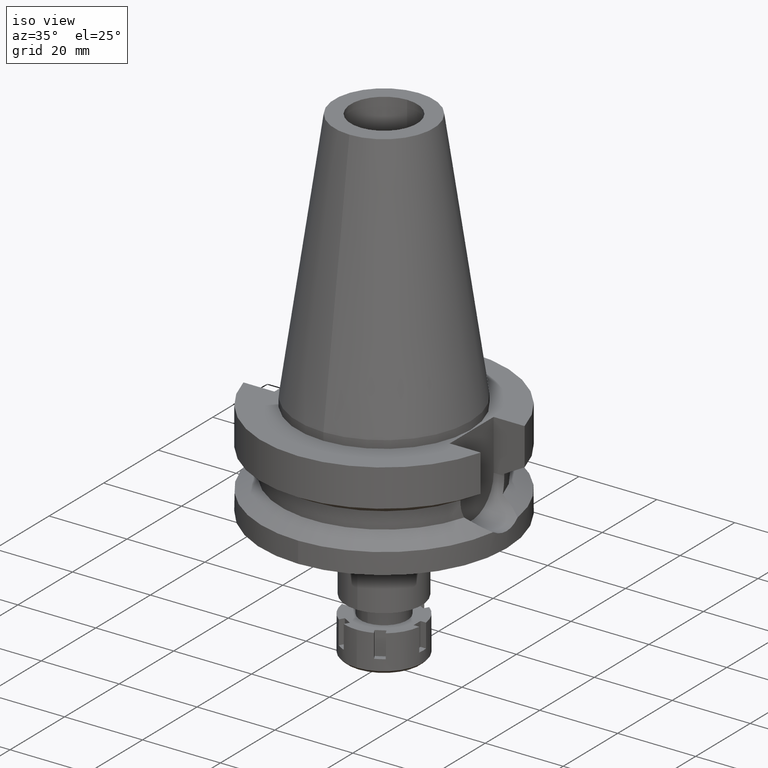
[diagram: clean part render]
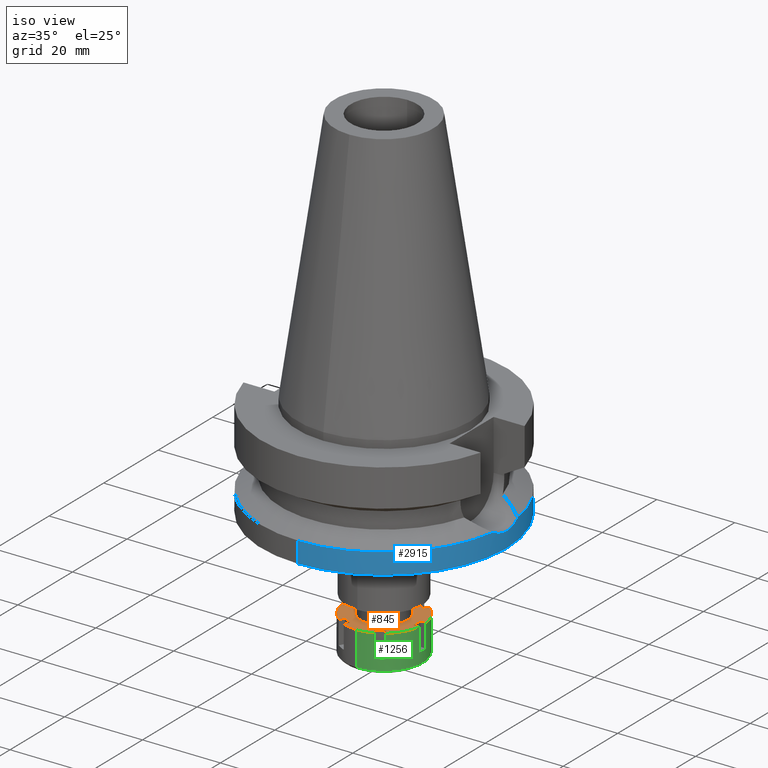
[diagram: same view with three faces highlighted in distinct colors, each labeled with its STEP entity id]
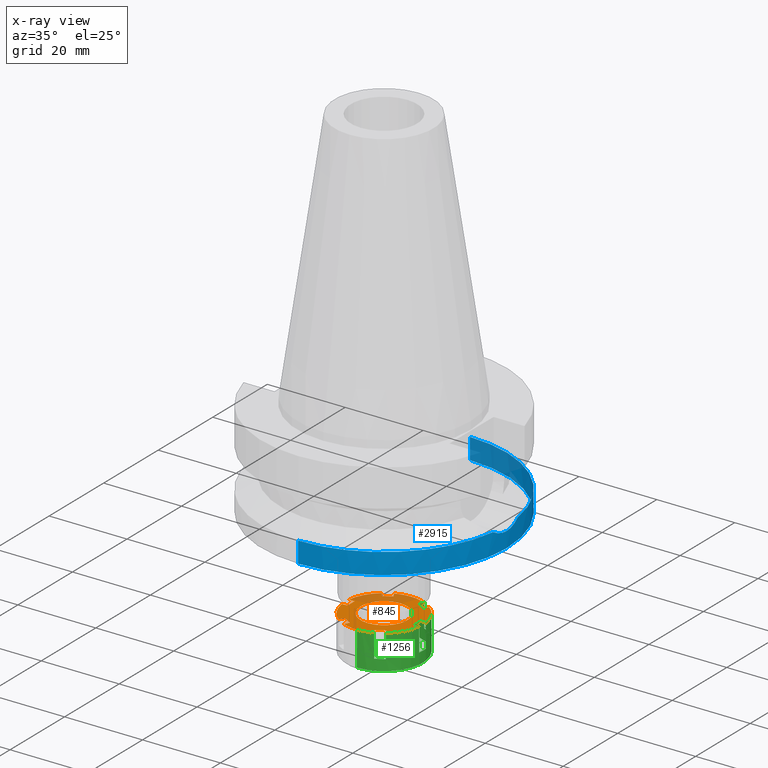
[diagram: x-ray of the same camera — body ghosted, the three highlighted faces saturated]
A machine part, iso view with three faces highlighted in distinct colors.
The next image is the same camera in x-ray (body ghosted, the three faces saturated) — at least one of them is partly hidden behind the body in this view.
Their STEP definitions:

[orange] entity #845 — the highlighted planar face has unit normal (0, 0, -1).
#6 = VECTOR ( 'NONE', #564, 1000.000000000000227 ) ;
#13 = ORIENTED_EDGE ( 'NONE', *, *, #2983, .F. ) ;
#38 = EDGE_CURVE ( 'NONE', #1126, #334, #3113, .T. ) ;
#73 = VERTEX_POINT ( 'NONE', #2316 ) ;
#86 = EDGE_CURVE ( 'NONE', #788, #3486, #3517, .T. ) ;
#95 = AXIS2_PLACEMENT_3D ( 'NONE', #978, #1810, #3449 ) ;
#104 = CARTESIAN_POINT ( 'NONE',  ( 0.0000000000000000000, 0.0000000000000000000, 0.0000000000000000000 ) ) ;
#109 = CIRCLE ( 'NONE', #2128, 6.000000000000000000 ) ;
#114 = DIRECTION ( 'NONE',  ( 0.0000000000000000000, 0.0000000000000000000, -1.000000000000000000 ) ) ;
#135 = LINE ( 'NONE', #2339, #2359 ) ;
#136 = ORIENTED_EDGE ( 'NONE', *, *, #3340, .F. ) ;
#156 = VERTEX_POINT ( 'NONE', #1031 ) ;
#158 = DIRECTION ( 'NONE',  ( 0.0000000000000000000, 0.0000000000000000000, -1.000000000000000000 ) ) ;
#175 = CIRCLE ( 'NONE', #2205, 10.00000000000000000 ) ;
#178 = EDGE_CURVE ( 'NONE', #1702, #471, #109, .T. ) ;
#180 = ORIENTED_EDGE ( 'NONE', *, *, #312, .T. ) ;
#225 = CARTESIAN_POINT ( 'NONE',  ( 3.167468245270000260, 7.986215932168000187, 0.0000000000000000000 ) ) ;
#246 = FACE_BOUND ( 'NONE', #2780, .T. ) ;
#249 = EDGE_CURVE ( 'NONE', #2332, #1006, #1128, .T. ) ;
#255 = ORIENTED_EDGE ( 'NONE', *, *, #1090, .F. ) ;
#269 = DIRECTION ( 'NONE',  ( 0.0000000000000000000, 0.0000000000000000000, -1.000000000000000000 ) ) ;
#279 = DIRECTION ( 'NONE',  ( -1.000000000000000000, 0.0000000000000000000, 0.0000000000000000000 ) ) ;
#312 = EDGE_CURVE ( 'NONE', #73, #788, #2810, .T. ) ;
#334 = VERTEX_POINT ( 'NONE', #2545 ) ;
#337 = VECTOR ( 'NONE', #1234, 1000.000000000000000 ) ;
#341 = DIRECTION ( 'NONE',  ( 0.5000000000000169864, 0.8660254037844288266, 0.0000000000000000000 ) ) ;
#356 = CARTESIAN_POINT ( 'NONE',  ( 0.0000000000000000000, 10.00000000000000000, 0.0000000000000000000 ) ) ;
#406 = DIRECTION ( 'NONE',  ( 0.0000000000000000000, 1.000000000000000000, 0.0000000000000000000 ) ) ;
#411 = DIRECTION ( 'NONE',  ( 0.3878251953515154948, -0.9217329428042371209, 0.0000000000000000000 ) ) ;
#420 = EDGE_CURVE ( 'NONE', #1573, #1604, #2621, .T. ) ;
#427 = EDGE_CURVE ( 'NONE', #3159, #2478, #1781, .T. ) ;
#436 = ORIENTED_EDGE ( 'NONE', *, *, #38, .F. ) ;
#471 = VERTEX_POINT ( 'NONE', #1203 ) ;
#480 = DIRECTION ( 'NONE',  ( 0.0000000000000000000, 1.000000000000000000, 0.0000000000000000000 ) ) ;
#486 = AXIS2_PLACEMENT_3D ( 'NONE', #2592, #114, #406 ) ;
#499 = CARTESIAN_POINT ( 'NONE',  ( -5.332531754731000717, -6.736215932168000187, 0.0000000000000000000 ) ) ;
#502 = EDGE_LOOP ( 'NONE', ( #577, #2282, #3426, #3454, #1510, #3533, #3087, #1050, #3248, #3521, #3433, #255, #3179, #1930, #1676, #436, #2854, #136, #1465, #2082, #180, #3519, #3120, #2594, #508, #3073 ) ) ;
#508 = ORIENTED_EDGE ( 'NONE', *, *, #249, .F. ) ;
#564 = DIRECTION ( 'NONE',  ( 0.5000000000002097211, 0.8660254037843175823, 0.0000000000000000000 ) ) ;
#577 = ORIENTED_EDGE ( 'NONE', *, *, #2261, .F. ) ;
#618 = CARTESIAN_POINT ( 'NONE',  ( 3.167468245269000171, -7.986215932168000187, 0.0000000000000000000 ) ) ;
#622 = EDGE_CURVE ( 'NONE', #2016, #1962, #2738, .T. ) ;
#642 = EDGE_CURVE ( 'NONE', #1609, #2332, #3528, .T. ) ;
#652 = CARTESIAN_POINT ( 'NONE',  ( 9.921567416491999580, -1.250000000000000000, 0.0000000000000000000 ) ) ;
#657 = CARTESIAN_POINT ( 'NONE',  ( -6.043315462977000507, 7.967329428041999506, 0.0000000000000000000 ) ) ;
#666 = CARTESIAN_POINT ( 'NONE',  ( -5.332531754731000717, -6.736215932168000187, 0.0000000000000000000 ) ) ;
#690 = EDGE_CURVE ( 'NONE', #2058, #2176, #2865, .T. ) ;
#709 = LINE ( 'NONE', #2106, #1831 ) ;
#761 = EDGE_CURVE ( 'NONE', #2556, #2240, #3205, .T. ) ;
#781 = CARTESIAN_POINT ( 'NONE',  ( 6.043315462977000507, -7.967329428041999506, 0.0000000000000000000 ) ) ;
#788 = VERTEX_POINT ( 'NONE', #2099 ) ;
#816 = LINE ( 'NONE', #781, #2178 ) ;
#830 = DIRECTION ( 'NONE',  ( -1.000000000000000000, 0.0000000000000000000, 0.0000000000000000000 ) ) ;
#845 = ADVANCED_FACE ( 'NONE', ( #1614, #246 ), #2720, .F. ) ;
#855 = CARTESIAN_POINT ( 'NONE',  ( 5.332531754731000717, 6.736215932168000187, 0.0000000000000000000 ) ) ;
#870 = DIRECTION ( 'NONE',  ( 0.8660254037844536956, -0.4999999999999738542, 0.0000000000000000000 ) ) ;
#879 = VECTOR ( 'NONE', #3403, 1000.000000000000114 ) ;
#910 = CARTESIAN_POINT ( 'NONE',  ( 6.043315462977000507, -7.967329428041999506, 0.0000000000000000000 ) ) ;
#920 = DIRECTION ( 'NONE',  ( 0.6043315462976971419, 0.7967329428041960426, 0.0000000000000000000 ) ) ;
#976 = CIRCLE ( 'NONE', #3329, 10.00000000000000000 ) ;
#978 = CARTESIAN_POINT ( 'NONE',  ( 0.0000000000000000000, 0.0000000000000000000, 0.0000000000000000000 ) ) ;
#1006 = VERTEX_POINT ( 'NONE', #855 ) ;
#1031 = CARTESIAN_POINT ( 'NONE',  ( -8.500000000000000000, 1.250000000000000000, 0.0000000000000000000 ) ) ;
#1040 = CARTESIAN_POINT ( 'NONE',  ( -3.167468245269000171, 7.986215932168000187, 0.0000000000000000000 ) ) ;
#1050 = ORIENTED_EDGE ( 'NONE', *, *, #1450, .T. ) ;
#1052 = CARTESIAN_POINT ( 'NONE',  ( 8.500000000000000000, 1.250000000000000000, 0.0000000000000000000 ) ) ;
#1061 = CARTESIAN_POINT ( 'NONE',  ( 3.878251953516000050, 9.217329428041999506, 0.0000000000000000000 ) ) ;
#1078 = CARTESIAN_POINT ( 'NONE',  ( -8.500000000000000000, -1.250000000000000000, 0.0000000000000000000 ) ) ;
#1090 = EDGE_CURVE ( 'NONE', #1265, #3159, #1666, .T. ) ;
#1099 = DIRECTION ( 'NONE',  ( -0.3878251953515154948, 0.9217329428042371209, 0.0000000000000000000 ) ) ;
#1111 = CARTESIAN_POINT ( 'NONE',  ( -8.500000000000000000, -1.250000000000000000, 0.0000000000000000000 ) ) ;
#1112 = CARTESIAN_POINT ( 'NONE',  ( 3.878251953516000050, 9.217329428041999506, 0.0000000000000000000 ) ) ;
#1126 = VERTEX_POINT ( 'NONE', #618 ) ;
#1128 = LINE ( 'NONE', #2237, #3464 ) ;
#1139 = EDGE_CURVE ( 'NONE', #2556, #73, #3051, .T. ) ;
#1166 = LINE ( 'NONE', #3364, #1378 ) ;
#1190 = VECTOR ( 'NONE', #2161, 1000.000000000000227 ) ;
#1203 = CARTESIAN_POINT ( 'NONE',  ( 0.0000000000000000000, -6.000000000000000000, 0.0000000000000000000 ) ) ;
#1221 = VECTOR ( 'NONE', #3235, 1000.000000000000227 ) ;
#1234 = DIRECTION ( 'NONE',  ( 1.000000000000000000, 0.0000000000000000000, 0.0000000000000000000 ) ) ;
#1241 = DIRECTION ( 'NONE',  ( -0.6043315462976971419, -0.7967329428041960426, 0.0000000000000000000 ) ) ;
#1265 = VERTEX_POINT ( 'NONE', #1452 ) ;
#1287 = VERTEX_POINT ( 'NONE', #3112 ) ;
#1294 = VERTEX_POINT ( 'NONE', #3131 ) ;
#1309 = DIRECTION ( 'NONE',  ( -0.8660254037844536956, -0.4999999999999738542, 0.0000000000000000000 ) ) ;
#1318 = EDGE_CURVE ( 'NONE', #1006, #1287, #1166, .T. ) ;
#1332 = CARTESIAN_POINT ( 'NONE',  ( -5.332531754731000717, 6.736215932168000187, 0.0000000000000000000 ) ) ;
#1378 = VECTOR ( 'NONE', #341, 1000.000000000000114 ) ;
#1388 = VERTEX_POINT ( 'NONE', #2331 ) ;
#1409 = EDGE_CURVE ( 'NONE', #1287, #3486, #2815, .T. ) ;
#1432 = CARTESIAN_POINT ( 'NONE',  ( -5.332531754731000717, 6.736215932168000187, 0.0000000000000000000 ) ) ;
#1450 = EDGE_CURVE ( 'NONE', #156, #2016, #709, .T. ) ;
#1452 = CARTESIAN_POINT ( 'NONE',  ( -3.167468245270000260, -7.986215932168000187, 0.0000000000000000000 ) ) ;
#1458 = LINE ( 'NONE', #2569, #337 ) ;
#1465 = ORIENTED_EDGE ( 'NONE', *, *, #761, .F. ) ;
#1473 = EDGE_CURVE ( 'NONE', #1815, #1573, #3221, .T. ) ;
#1498 = VECTOR ( 'NONE', #2799, 1000.000000000000000 ) ;
#1510 = ORIENTED_EDGE ( 'NONE', *, *, #2173, .F. ) ;
#1529 = DIRECTION ( 'NONE',  ( 0.8660254037844536956, 0.4999999999999738542, 0.0000000000000000000 ) ) ;
#1556 = DIRECTION ( 'NONE',  ( 0.0000000000000000000, 0.0000000000000000000, -1.000000000000000000 ) ) ;
#1573 = VERTEX_POINT ( 'NONE', #3512 ) ;
#1600 = LINE ( 'NONE', #3023, #1825 ) ;
#1604 = VERTEX_POINT ( 'NONE', #2671 ) ;
#1609 = VERTEX_POINT ( 'NONE', #1112 ) ;
#1611 = VECTOR ( 'NONE', #1747, 1000.000000000000227 ) ;
#1614 = FACE_OUTER_BOUND ( 'NONE', #502, .T. ) ;
#1640 = DIRECTION ( 'NONE',  ( -0.5000000000000169864, 0.8660254037844288266, 0.0000000000000000000 ) ) ;
#1643 = ORIENTED_EDGE ( 'NONE', *, *, #178, .F. ) ;
#1666 = LINE ( 'NONE', #2550, #1498 ) ;
#1676 = ORIENTED_EDGE ( 'NONE', *, *, #2910, .F. ) ;
#1702 = VERTEX_POINT ( 'NONE', #3325 ) ;
#1728 = CARTESIAN_POINT ( 'NONE',  ( 3.167468245269000171, -7.986215932168000187, 0.0000000000000000000 ) ) ;
#1740 = DIRECTION ( 'NONE',  ( 0.0000000000000000000, 0.0000000000000000000, -1.000000000000000000 ) ) ;
#1747 = DIRECTION ( 'NONE',  ( 0.5000000000002097211, -0.8660254037843175823, 0.0000000000000000000 ) ) ;
#1774 = VECTOR ( 'NONE', #1899, 1000.000000000000000 ) ;
#1781 = LINE ( 'NONE', #499, #879 ) ;
#1810 = DIRECTION ( 'NONE',  ( 0.0000000000000000000, 0.0000000000000000000, -1.000000000000000000 ) ) ;
#1815 = VERTEX_POINT ( 'NONE', #1432 ) ;
#1825 = VECTOR ( 'NONE', #1309, 1000.000000000000000 ) ;
#1831 = VECTOR ( 'NONE', #3166, 1000.000000000000000 ) ;
#1853 = CARTESIAN_POINT ( 'NONE',  ( -9.921567416491999580, -1.250000000000000000, 0.0000000000000000000 ) ) ;
#1868 = CARTESIAN_POINT ( 'NONE',  ( -6.043315462977000507, -7.967329428041999506, 0.0000000000000000000 ) ) ;
#1899 = DIRECTION ( 'NONE',  ( 1.000000000000000000, 0.0000000000000000000, 0.0000000000000000000 ) ) ;
#1910 = CARTESIAN_POINT ( 'NONE',  ( 0.0000000000000000000, 0.0000000000000000000, 0.0000000000000000000 ) ) ;
#1924 = EDGE_CURVE ( 'NONE', #2268, #1294, #976, .T. ) ;
#1930 = ORIENTED_EDGE ( 'NONE', *, *, #1924, .F. ) ;
#1936 = LINE ( 'NONE', #3030, #6 ) ;
#1948 = DIRECTION ( 'NONE',  ( 0.0000000000000000000, 1.000000000000000000, 0.0000000000000000000 ) ) ;
#1950 = DIRECTION ( 'NONE',  ( 0.0000000000000000000, 0.0000000000000000000, 1.000000000000000000 ) ) ;
#1962 = VERTEX_POINT ( 'NONE', #1853 ) ;
#2016 = VERTEX_POINT ( 'NONE', #1111 ) ;
#2042 = CIRCLE ( 'NONE', #486, 10.00000000000000000 ) ;
#2058 = VERTEX_POINT ( 'NONE', #2537 ) ;
#2082 = ORIENTED_EDGE ( 'NONE', *, *, #1139, .T. ) ;
#2099 = CARTESIAN_POINT ( 'NONE',  ( 8.500000000000000000, 1.250000000000000000, 0.0000000000000000000 ) ) ;
#2106 = CARTESIAN_POINT ( 'NONE',  ( -8.500000000000000000, 1.250000000000000000, 0.0000000000000000000 ) ) ;
#2117 = CARTESIAN_POINT ( 'NONE',  ( 0.0000000000000000000, 0.0000000000000000000, 0.0000000000000000000 ) ) ;
#2128 = AXIS2_PLACEMENT_3D ( 'NONE', #3226, #3282, #480 ) ;
#2139 = DIRECTION ( 'NONE',  ( 0.0000000000000000000, -1.000000000000000000, 0.0000000000000000000 ) ) ;
#2156 = EDGE_CURVE ( 'NONE', #2058, #156, #1458, .T. ) ;
#2161 = DIRECTION ( 'NONE',  ( -0.5000000000002097211, -0.8660254037843175823, 0.0000000000000000000 ) ) ;
#2173 = EDGE_CURVE ( 'NONE', #2176, #1815, #135, .T. ) ;
#2176 = VERTEX_POINT ( 'NONE', #657 ) ;
#2177 = DIRECTION ( 'NONE',  ( 0.0000000000000000000, 0.0000000000000000000, -1.000000000000000000 ) ) ;
#2178 = VECTOR ( 'NONE', #1640, 1000.000000000000114 ) ;
#2205 = AXIS2_PLACEMENT_3D ( 'NONE', #2882, #1740, #411 ) ;
#2225 = DIRECTION ( 'NONE',  ( 0.0000000000000000000, -1.000000000000000000, 0.0000000000000000000 ) ) ;
#2237 = CARTESIAN_POINT ( 'NONE',  ( 3.167468245270000260, 7.986215932168000187, 0.0000000000000000000 ) ) ;
#2240 = VERTEX_POINT ( 'NONE', #910 ) ;
#2261 = EDGE_CURVE ( 'NONE', #3071, #1609, #2042, .T. ) ;
#2268 = VERTEX_POINT ( 'NONE', #2322 ) ;
#2282 = ORIENTED_EDGE ( 'NONE', *, *, #3419, .F. ) ;
#2291 = VECTOR ( 'NONE', #830, 1000.000000000000000 ) ;
#2316 = CARTESIAN_POINT ( 'NONE',  ( 8.500000000000000000, -1.250000000000000000, 0.0000000000000000000 ) ) ;
#2322 = CARTESIAN_POINT ( 'NONE',  ( 0.0000000000000000000, -10.00000000000000000, 0.0000000000000000000 ) ) ;
#2331 = CARTESIAN_POINT ( 'NONE',  ( 5.332531754731000717, -6.736215932168000187, 0.0000000000000000000 ) ) ;
#2332 = VERTEX_POINT ( 'NONE', #225 ) ;
#2337 = CARTESIAN_POINT ( 'NONE',  ( 0.0000000000000000000, 0.0000000000000000000, 0.0000000000000000000 ) ) ;
#2339 = CARTESIAN_POINT ( 'NONE',  ( -6.043315462977000507, 7.967329428041999506, 0.0000000000000000000 ) ) ;
#2349 = DIRECTION ( 'NONE',  ( 0.0000000000000000000, 0.0000000000000000000, -1.000000000000000000 ) ) ;
#2359 = VECTOR ( 'NONE', #3137, 1000.000000000000114 ) ;
#2394 = DIRECTION ( 'NONE',  ( 0.0000000000000000000, -1.000000000000000000, 0.0000000000000000000 ) ) ;
#2406 = AXIS2_PLACEMENT_3D ( 'NONE', #2440, #269, #1099 ) ;
#2430 = AXIS2_PLACEMENT_3D ( 'NONE', #104, #158, #1241 ) ;
#2440 = CARTESIAN_POINT ( 'NONE',  ( 0.0000000000000000000, 0.0000000000000000000, 0.0000000000000000000 ) ) ;
#2444 = VECTOR ( 'NONE', #1948, 1000.000000000000000 ) ;
#2469 = AXIS2_PLACEMENT_3D ( 'NONE', #2117, #2177, #2139 ) ;
#2478 = VERTEX_POINT ( 'NONE', #1868 ) ;
#2537 = CARTESIAN_POINT ( 'NONE',  ( -9.921567416491999580, 1.250000000000000000, 0.0000000000000000000 ) ) ;
#2545 = CARTESIAN_POINT ( 'NONE',  ( 3.878251953514999961, -9.217329428041999506, 0.0000000000000000000 ) ) ;
#2550 = CARTESIAN_POINT ( 'NONE',  ( -3.167468245270000260, -7.986215932168000187, 0.0000000000000000000 ) ) ;
#2556 = VERTEX_POINT ( 'NONE', #652 ) ;
#2562 = CARTESIAN_POINT ( 'NONE',  ( 0.0000000000000000000, 0.0000000000000000000, 0.0000000000000000000 ) ) ;
#2569 = CARTESIAN_POINT ( 'NONE',  ( -9.921567416491999580, 1.250000000000000000, 0.0000000000000000000 ) ) ;
#2580 = AXIS2_PLACEMENT_3D ( 'NONE', #2337, #1556, #3411 ) ;
#2592 = CARTESIAN_POINT ( 'NONE',  ( 0.0000000000000000000, 0.0000000000000000000, 0.0000000000000000000 ) ) ;
#2594 = ORIENTED_EDGE ( 'NONE', *, *, #1318, .F. ) ;
#2607 = EDGE_CURVE ( 'NONE', #1294, #1265, #1936, .T. ) ;
#2621 = LINE ( 'NONE', #1040, #1221 ) ;
#2671 = CARTESIAN_POINT ( 'NONE',  ( -3.878251953514999961, 9.217329428041999506, 0.0000000000000000000 ) ) ;
#2720 = PLANE ( 'NONE',  #2469 ) ;
#2738 = LINE ( 'NONE', #1078, #2291 ) ;
#2768 = CARTESIAN_POINT ( 'NONE',  ( 8.500000000000000000, -1.250000000000000000, 0.0000000000000000000 ) ) ;
#2771 = CIRCLE ( 'NONE', #2430, 9.999999999999998224 ) ;
#2780 = EDGE_LOOP ( 'NONE', ( #1643, #13 ) ) ;
#2787 = CARTESIAN_POINT ( 'NONE',  ( 9.921567416491999580, -1.250000000000000000, 0.0000000000000000000 ) ) ;
#2799 = DIRECTION ( 'NONE',  ( -0.8660254037844536956, 0.4999999999999738542, 0.0000000000000000000 ) ) ;
#2810 = LINE ( 'NONE', #2768, #2444 ) ;
#2815 = CIRCLE ( 'NONE', #3273, 9.999999999999998224 ) ;
#2854 = ORIENTED_EDGE ( 'NONE', *, *, #3414, .F. ) ;
#2865 = CIRCLE ( 'NONE', #95, 9.999999999999998224 ) ;
#2877 = CARTESIAN_POINT ( 'NONE',  ( 9.921567416491999580, 1.250000000000000000, 0.0000000000000000000 ) ) ;
#2882 = CARTESIAN_POINT ( 'NONE',  ( 0.0000000000000000000, 0.0000000000000000000, 0.0000000000000000000 ) ) ;
#2910 = EDGE_CURVE ( 'NONE', #334, #2268, #175, .T. ) ;
#2930 = VECTOR ( 'NONE', #1529, 1000.000000000000000 ) ;
#2983 = EDGE_CURVE ( 'NONE', #471, #1702, #3285, .T. ) ;
#3023 = CARTESIAN_POINT ( 'NONE',  ( 5.332531754731000717, -6.736215932168000187, 0.0000000000000000000 ) ) ;
#3030 = CARTESIAN_POINT ( 'NONE',  ( -3.878251953516000050, -9.217329428041999506, 0.0000000000000000000 ) ) ;
#3051 = LINE ( 'NONE', #2787, #3515 ) ;
#3071 = VERTEX_POINT ( 'NONE', #356 ) ;
#3073 = ORIENTED_EDGE ( 'NONE', *, *, #642, .F. ) ;
#3087 = ORIENTED_EDGE ( 'NONE', *, *, #2156, .T. ) ;
#3112 = CARTESIAN_POINT ( 'NONE',  ( 6.043315462977000507, 7.967329428041999506, 0.0000000000000000000 ) ) ;
#3113 = LINE ( 'NONE', #1728, #1611 ) ;
#3120 = ORIENTED_EDGE ( 'NONE', *, *, #1409, .F. ) ;
#3131 = CARTESIAN_POINT ( 'NONE',  ( -3.878251953516000050, -9.217329428041999506, 0.0000000000000000000 ) ) ;
#3137 = DIRECTION ( 'NONE',  ( 0.5000000000000169864, -0.8660254037844288266, 0.0000000000000000000 ) ) ;
#3159 = VERTEX_POINT ( 'NONE', #666 ) ;
#3166 = DIRECTION ( 'NONE',  ( 0.0000000000000000000, -1.000000000000000000, 0.0000000000000000000 ) ) ;
#3170 = EDGE_CURVE ( 'NONE', #2478, #1962, #2771, .T. ) ;
#3179 = ORIENTED_EDGE ( 'NONE', *, *, #2607, .F. ) ;
#3205 = CIRCLE ( 'NONE', #2580, 9.999999999999998224 ) ;
#3221 = LINE ( 'NONE', #1332, #2930 ) ;
#3226 = CARTESIAN_POINT ( 'NONE',  ( 0.0000000000000000000, 0.0000000000000000000, 0.0000000000000000000 ) ) ;
#3235 = DIRECTION ( 'NONE',  ( -0.5000000000002097211, 0.8660254037843175823, 0.0000000000000000000 ) ) ;
#3248 = ORIENTED_EDGE ( 'NONE', *, *, #622, .T. ) ;
#3273 = AXIS2_PLACEMENT_3D ( 'NONE', #3383, #2349, #920 ) ;
#3282 = DIRECTION ( 'NONE',  ( 0.0000000000000000000, 0.0000000000000000000, 1.000000000000000000 ) ) ;
#3285 = CIRCLE ( 'NONE', #3518, 6.000000000000000000 ) ;
#3315 = CIRCLE ( 'NONE', #2406, 10.00000000000000000 ) ;
#3325 = CARTESIAN_POINT ( 'NONE',  ( 0.0000000000000000000, 6.000000000000000000, 0.0000000000000000000 ) ) ;
#3329 = AXIS2_PLACEMENT_3D ( 'NONE', #1910, #3530, #2394 ) ;
#3340 = EDGE_CURVE ( 'NONE', #2240, #1388, #816, .T. ) ;
#3364 = CARTESIAN_POINT ( 'NONE',  ( 5.332531754731000717, 6.736215932168000187, 0.0000000000000000000 ) ) ;
#3383 = CARTESIAN_POINT ( 'NONE',  ( 0.0000000000000000000, 0.0000000000000000000, 0.0000000000000000000 ) ) ;
#3403 = DIRECTION ( 'NONE',  ( -0.5000000000000169864, -0.8660254037844288266, 0.0000000000000000000 ) ) ;
#3411 = DIRECTION ( 'NONE',  ( 0.9921567416492210745, -0.1250000000000026090, 0.0000000000000000000 ) ) ;
#3414 = EDGE_CURVE ( 'NONE', #1388, #1126, #1600, .T. ) ;
#3419 = EDGE_CURVE ( 'NONE', #1604, #3071, #3315, .T. ) ;
#3426 = ORIENTED_EDGE ( 'NONE', *, *, #420, .F. ) ;
#3433 = ORIENTED_EDGE ( 'NONE', *, *, #427, .F. ) ;
#3449 = DIRECTION ( 'NONE',  ( -0.9921567416492210745, 0.1250000000000026090, 0.0000000000000000000 ) ) ;
#3454 = ORIENTED_EDGE ( 'NONE', *, *, #1473, .F. ) ;
#3464 = VECTOR ( 'NONE', #870, 1000.000000000000000 ) ;
#3486 = VERTEX_POINT ( 'NONE', #2877 ) ;
#3512 = CARTESIAN_POINT ( 'NONE',  ( -3.167468245269000171, 7.986215932168000187, 0.0000000000000000000 ) ) ;
#3515 = VECTOR ( 'NONE', #279, 1000.000000000000000 ) ;
#3517 = LINE ( 'NONE', #1052, #1774 ) ;
#3518 = AXIS2_PLACEMENT_3D ( 'NONE', #2562, #1950, #2225 ) ;
#3519 = ORIENTED_EDGE ( 'NONE', *, *, #86, .T. ) ;
#3521 = ORIENTED_EDGE ( 'NONE', *, *, #3170, .F. ) ;
#3528 = LINE ( 'NONE', #1061, #1190 ) ;
#3530 = DIRECTION ( 'NONE',  ( 0.0000000000000000000, 0.0000000000000000000, -1.000000000000000000 ) ) ;
#3533 = ORIENTED_EDGE ( 'NONE', *, *, #690, .F. ) ;

[blue] entity #2915 — the highlighted cylindrical surface (partial cylindrical patch) has radius 31.5 mm, axis along (0, 0, -1).
#98 = FACE_OUTER_BOUND ( 'NONE', #2688, .T. ) ;
#121 = CARTESIAN_POINT ( 'NONE',  ( 31.43710641057977639, 1.991379779859996590, -22.75094280094347710 ) ) ;
#138 = DIRECTION ( 'NONE',  ( 0.0000000000000000000, 0.0000000000000000000, -1.000000000000000000 ) ) ;
#142 = DIRECTION ( 'NONE',  ( 0.0000000000000000000, 1.099151708819000049E-13, -1.000000000000000000 ) ) ;
#168 = CARTESIAN_POINT ( 'NONE',  ( 31.17899877608999759, -4.485536235554000051, -21.63449434733000132 ) ) ;
#171 = CYLINDRICAL_SURFACE ( 'NONE', #3106, 31.50000000000000000 ) ;
#289 = ORIENTED_EDGE ( 'NONE', *, *, #1631, .F. ) ;
#422 = EDGE_CURVE ( 'NONE', #2900, #2188, #3161, .T. ) ;
#434 = CARTESIAN_POINT ( 'NONE',  ( 0.0000000000000000000, -31.50000000000000000, -21.63449434733000132 ) ) ;
#525 = DIRECTION ( 'NONE',  ( 0.0000000000000000000, 0.0000000000000000000, -1.000000000000000000 ) ) ;
#540 = CARTESIAN_POINT ( 'NONE',  ( 31.41025956846644362, -2.374562832973779791, -22.64181864170504355 ) ) ;
#645 = CARTESIAN_POINT ( 'NONE',  ( 31.41700835831544225, 2.283543664145136098, -22.66933216879627722 ) ) ;
#701 = CIRCLE ( 'NONE', #3520, 31.50000000000001421 ) ;
#702 = ORIENTED_EDGE ( 'NONE', *, *, #3500, .T. ) ;
#720 = CARTESIAN_POINT ( 'NONE',  ( 0.0000000000000000000, 2.099289543097999720E-14, 71.42000000000000171 ) ) ;
#736 = VERTEX_POINT ( 'NONE', #168 ) ;
#737 = CARTESIAN_POINT ( 'NONE',  ( 31.17899877608999759, 4.485536235554000051, -21.63449434733000132 ) ) ;
#817 = DIRECTION ( 'NONE',  ( 0.9898094849552905306, -0.1423979757318985240, 0.0000000000000000000 ) ) ;
#951 = CARTESIAN_POINT ( 'NONE',  ( 31.41523313603343581, 2.307851765051336823, -22.66209965112095404 ) ) ;
#963 = CARTESIAN_POINT ( 'NONE',  ( 31.50000000000000000, 0.0000000000000000000, -23.00000000000000000 ) ) ;
#999 = CIRCLE ( 'NONE', #1344, 31.50000000000000000 ) ;
#1085 = CARTESIAN_POINT ( 'NONE',  ( 31.40784684084876943, -2.406367806406980225, -22.63197621434543905 ) ) ;
#1193 = CARTESIAN_POINT ( 'NONE',  ( 0.0000000000000000000, 0.0000000000000000000, -21.63449434733000132 ) ) ;
#1216 = CARTESIAN_POINT ( 'NONE',  ( 0.0000000000000000000, 31.50000000000000000, -27.00000000000000000 ) ) ;
#1220 = CARTESIAN_POINT ( 'NONE',  ( 31.44589798759551869, 1.844932280710275485, -22.78637270911190882 ) ) ;
#1227 = VERTEX_POINT ( 'NONE', #434 ) ;
#1285 = LINE ( 'NONE', #3192, #1286 ) ;
#1286 = VECTOR ( 'NONE', #2699, 1000.000000000000000 ) ;
#1303 = CIRCLE ( 'NONE', #3489, 31.50000000000000000 ) ;
#1304 = CARTESIAN_POINT ( 'NONE',  ( 0.0000000000000000000, 31.50000000000000000, -21.63449434733000132 ) ) ;
#1344 = AXIS2_PLACEMENT_3D ( 'NONE', #1193, #1752, #1480 ) ;
#1415 = CARTESIAN_POINT ( 'NONE',  ( 31.47114290507614598, -1.554796663260024747, -22.89008434574964213 ) ) ;
#1431 = VERTEX_POINT ( 'NONE', #3425 ) ;
#1463 = CARTESIAN_POINT ( 'NONE',  ( 31.47114559338427142, 1.356374570635745735, -22.88735630181247771 ) ) ;
#1480 = DIRECTION ( 'NONE',  ( 0.0000000000000000000, 1.000000000000000000, 0.0000000000000000000 ) ) ;
#1540 = CARTESIAN_POINT ( 'NONE',  ( 31.42566608920673588, 2.161912855976699799, -22.70455434713364085 ) ) ;
#1631 = EDGE_CURVE ( 'NONE', #736, #2209, #1949, .T. ) ;
#1641 = CARTESIAN_POINT ( 'NONE',  ( 0.0000000000000000000, 0.0000000000000000000, -21.63449434733000132 ) ) ;
#1651 = EDGE_CURVE ( 'NONE', #736, #1227, #701, .T. ) ;
#1752 = DIRECTION ( 'NONE',  ( 0.0000000000000000000, 0.0000000000000000000, -1.000000000000000000 ) ) ;
#1775 = ORIENTED_EDGE ( 'NONE', *, *, #1651, .T. ) ;
#1777 = CARTESIAN_POINT ( 'NONE',  ( 0.0000000000000000000, 31.50000000000000000, -21.63449434733000132 ) ) ;
#1863 = VECTOR ( 'NONE', #142, 1000.000000000000000 ) ;
#1866 = VERTEX_POINT ( 'NONE', #737 ) ;
#1893 = CARTESIAN_POINT ( 'NONE',  ( 31.41185438971777444, -2.353388662176301160, -22.64832348432837961 ) ) ;
#1929 = CARTESIAN_POINT ( 'NONE',  ( 31.50000000000001421, -0.7651554269668178199, -23.00000000000000711 ) ) ;
#1949 = B_SPLINE_CURVE_WITH_KNOTS ( 'NONE', 3,
 ( #2459, #3260, #3008, #2169, #3552, #2779, #2208, #2793, #1085, #540, #1893, #2187, #1415, #1929, #3536 ),
 .UNSPECIFIED., .F., .F.,
 ( 4, 2, 2, 1, 1, 1, 2, 2, 4 ),
 ( 0.0000000000000000000, 0.2500000000000083267, 0.3750000000000123790, 0.4375000000000151545, 0.4687500000000166533, 0.4843750000000174305, 0.4921875000000175970, 0.5000000000000177636, 1.000000000000000000 ),
 .UNSPECIFIED. ) ;
#2036 = CARTESIAN_POINT ( 'NONE',  ( 31.41422043550664256, 2.321593114301752081, -22.65797165830636928 ) ) ;
#2051 = CARTESIAN_POINT ( 'NONE',  ( 31.28513683615316410, 3.747769718700968866, -22.12956222723138211 ) ) ;
#2169 = CARTESIAN_POINT ( 'NONE',  ( 31.33673721237508758, -3.204096010263492555, -22.33755624043850219 ) ) ;
#2187 = CARTESIAN_POINT ( 'NONE',  ( 31.41252693101205651, -2.344406219100708455, -22.65106619707029623 ) ) ;
#2188 = VERTEX_POINT ( 'NONE', #1216 ) ;
#2208 = CARTESIAN_POINT ( 'NONE',  ( 31.38995345623181521, -2.631089804381823161, -22.55883194689419113 ) ) ;
#2209 = VERTEX_POINT ( 'NONE', #963 ) ;
#2231 = EDGE_CURVE ( 'NONE', #2900, #1866, #999, .T. ) ;
#2326 = CARTESIAN_POINT ( 'NONE',  ( 31.41965005813989009, 2.247072451142189564, -22.68008986001243343 ) ) ;
#2338 = DIRECTION ( 'NONE',  ( 0.0000000000000000000, -1.000000000000000000, 0.0000000000000000000 ) ) ;
#2344 = DIRECTION ( 'NONE',  ( 0.0000000000000000000, -1.000000000000000000, 0.0000000000000000000 ) ) ;
#2379 = ORIENTED_EDGE ( 'NONE', *, *, #2381, .T. ) ;
#2381 = EDGE_CURVE ( 'NONE', #1227, #1431, #1285, .T. ) ;
#2459 = CARTESIAN_POINT ( 'NONE',  ( 31.17899877608999759, -4.485536235554000051, -21.63449434733000132 ) ) ;
#2507 = ORIENTED_EDGE ( 'NONE', *, *, #2231, .T. ) ;
#2618 = CARTESIAN_POINT ( 'NONE',  ( 31.46212859131685491, 1.551903289695089505, -22.85152805509897789 ) ) ;
#2648 = CARTESIAN_POINT ( 'NONE',  ( 31.50000000000000000, 0.3825415465182694374, -23.00000000000000711 ) ) ;
#2688 = EDGE_LOOP ( 'NONE', ( #1775, #2379, #702, #3157, #2507, #3479, #289 ) ) ;
#2699 = DIRECTION ( 'NONE',  ( 0.0000000000000000000, -1.105773104655000034E-13, -1.000000000000000000 ) ) ;
#2779 = CARTESIAN_POINT ( 'NONE',  ( 31.37858090354414387, -2.761758643552321146, -22.51201132460422727 ) ) ;
#2793 = CARTESIAN_POINT ( 'NONE',  ( 31.40207367288942208, -2.480881812536134934, -22.60840945404714830 ) ) ;
#2896 = EDGE_CURVE ( 'NONE', #2209, #1866, #3098, .T. ) ;
#2900 = VERTEX_POINT ( 'NONE', #1777 ) ;
#2915 = ADVANCED_FACE ( 'NONE', ( #98 ), #171, .T. ) ;
#2918 = CARTESIAN_POINT ( 'NONE',  ( 31.50000000000000000, 0.0000000000000000000, -23.00000000000000000 ) ) ;
#3008 = CARTESIAN_POINT ( 'NONE',  ( 31.27812972759047483, -3.746556030392427683, -22.08615384542984472 ) ) ;
#3098 = B_SPLINE_CURVE_WITH_KNOTS ( 'NONE', 3,
 ( #2918, #2648, #3418, #1463, #2618, #1220, #121, #1540, #2326, #645, #951, #2036, #3126, #2051, #3141 ),
 .UNSPECIFIED., .F., .F.,
 ( 4, 2, 2, 1, 1, 1, 2, 2, 4 ),
 ( 0.0000000000000000000, 0.2499999999999868994, 0.3749999999999803491, 0.4374999999999771294, 0.4687499999999754086, 0.4843749999999747979, 0.4921874999999747424, 0.4999999999999747979, 1.000000000000000000 ),
 .UNSPECIFIED. ) ;
#3106 = AXIS2_PLACEMENT_3D ( 'NONE', #720, #138, #2344 ) ;
#3126 = CARTESIAN_POINT ( 'NONE',  ( 31.36328283750743040, 3.007832629288016868, -22.45025453251525605 ) ) ;
#3136 = DIRECTION ( 'NONE',  ( 0.0000000000000000000, 0.0000000000000000000, 1.000000000000000000 ) ) ;
#3141 = CARTESIAN_POINT ( 'NONE',  ( 31.17899877608999759, 4.485536235554000051, -21.63449434733000132 ) ) ;
#3157 = ORIENTED_EDGE ( 'NONE', *, *, #422, .F. ) ;
#3161 = LINE ( 'NONE', #1304, #1863 ) ;
#3192 = CARTESIAN_POINT ( 'NONE',  ( 0.0000000000000000000, -31.50000000000000000, -21.63449434733000132 ) ) ;
#3260 = CARTESIAN_POINT ( 'NONE',  ( 31.23206219158262442, -4.116692003856476489, -21.88200209894292669 ) ) ;
#3418 = CARTESIAN_POINT ( 'NONE',  ( 31.49278639834608029, 0.7710438198696041301, -22.97268655619793520 ) ) ;
#3425 = CARTESIAN_POINT ( 'NONE',  ( 0.0000000000000000000, -31.50000000000000000, -27.00000000000000000 ) ) ;
#3430 = CARTESIAN_POINT ( 'NONE',  ( 0.0000000000000000000, 2.099289543097999720E-14, -27.00000000000000000 ) ) ;
#3479 = ORIENTED_EDGE ( 'NONE', *, *, #2896, .F. ) ;
#3489 = AXIS2_PLACEMENT_3D ( 'NONE', #3430, #3136, #2338 ) ;
#3500 = EDGE_CURVE ( 'NONE', #1431, #2188, #1303, .T. ) ;
#3520 = AXIS2_PLACEMENT_3D ( 'NONE', #1641, #525, #817 ) ;
#3536 = CARTESIAN_POINT ( 'NONE',  ( 31.50000000000000000, 0.0000000000000000000, -23.00000000000000000 ) ) ;
#3552 = CARTESIAN_POINT ( 'NONE',  ( 31.35452407076541448, -3.025350768555624459, -22.41224209215396357 ) ) ;

[green] entity #1256 — the highlighted cylindrical surface (partial cylindrical patch) has radius 10 mm, axis along (0, 0, -1).
#45 = EDGE_CURVE ( 'NONE', #3344, #3375, #227, .T. ) ;
#64 = DIRECTION ( 'NONE',  ( 0.0000000000000000000, 0.0000000000000000000, 1.000000000000000000 ) ) ;
#96 = EDGE_LOOP ( 'NONE', ( #2938, #2715, #660, #204, #741, #711, #3185, #2958, #2891, #3193, #2210, #2067, #1113, #624, #1990, #2087 ) ) ;
#114 = DIRECTION ( 'NONE',  ( 0.0000000000000000000, 0.0000000000000000000, -1.000000000000000000 ) ) ;
#120 = VECTOR ( 'NONE', #3114, 1000.000000000000000 ) ;
#143 = LINE ( 'NONE', #1527, #1967 ) ;
#175 = CIRCLE ( 'NONE', #2205, 10.00000000000000000 ) ;
#204 = ORIENTED_EDGE ( 'NONE', *, *, #1960, .T. ) ;
#227 = CIRCLE ( 'NONE', #3215, 10.00000000000000000 ) ;
#234 = CARTESIAN_POINT ( 'NONE',  ( 3.878251953516000050, 9.217329428041999506, -6.000000000000000000 ) ) ;
#286 = AXIS2_PLACEMENT_3D ( 'NONE', #3182, #724, #1818 ) ;
#290 = VERTEX_POINT ( 'NONE', #1694 ) ;
#330 = EDGE_CURVE ( 'NONE', #2979, #2240, #339, .T. ) ;
#334 = VERTEX_POINT ( 'NONE', #2545 ) ;
#339 = LINE ( 'NONE', #1434, #2498 ) ;
#356 = CARTESIAN_POINT ( 'NONE',  ( 0.0000000000000000000, 10.00000000000000000, 0.0000000000000000000 ) ) ;
#359 = CARTESIAN_POINT ( 'NONE',  ( 9.921567416491999580, 1.250000000000000000, -6.000000000000000000 ) ) ;
#395 = DIRECTION ( 'NONE',  ( 0.0000000000000000000, 0.0000000000000000000, -1.000000000000000000 ) ) ;
#406 = DIRECTION ( 'NONE',  ( 0.0000000000000000000, 1.000000000000000000, 0.0000000000000000000 ) ) ;
#411 = DIRECTION ( 'NONE',  ( 0.3878251953515154948, -0.9217329428042371209, 0.0000000000000000000 ) ) ;
#419 = DIRECTION ( 'NONE',  ( 0.0000000000000000000, 0.0000000000000000000, 1.000000000000000000 ) ) ;
#447 = AXIS2_PLACEMENT_3D ( 'NONE', #2062, #3429, #1791 ) ;
#458 = CARTESIAN_POINT ( 'NONE',  ( 0.0000000000000000000, 0.0000000000000000000, -8.800000000000000711 ) ) ;
#486 = AXIS2_PLACEMENT_3D ( 'NONE', #2592, #114, #406 ) ;
#500 = DIRECTION ( 'NONE',  ( 0.0000000000000000000, 0.0000000000000000000, -1.000000000000000000 ) ) ;
#624 = ORIENTED_EDGE ( 'NONE', *, *, #2261, .T. ) ;
#646 = VERTEX_POINT ( 'NONE', #2294 ) ;
#652 = CARTESIAN_POINT ( 'NONE',  ( 9.921567416491999580, -1.250000000000000000, 0.0000000000000000000 ) ) ;
#660 = ORIENTED_EDGE ( 'NONE', *, *, #2542, .F. ) ;
#667 = CARTESIAN_POINT ( 'NONE',  ( 0.0000000000000000000, -10.00000000000000000, -8.800000000000000711 ) ) ;
#696 = CARTESIAN_POINT ( 'NONE',  ( 9.921567416491999580, -1.250000000000000000, 0.0000000000000000000 ) ) ;
#711 = ORIENTED_EDGE ( 'NONE', *, *, #761, .T. ) ;
#717 = DIRECTION ( 'NONE',  ( 0.0000000000000000000, 0.0000000000000000000, -1.000000000000000000 ) ) ;
#724 = DIRECTION ( 'NONE',  ( 0.0000000000000000000, 0.0000000000000000000, -1.000000000000000000 ) ) ;
#741 = ORIENTED_EDGE ( 'NONE', *, *, #2270, .F. ) ;
#761 = EDGE_CURVE ( 'NONE', #2556, #2240, #3205, .T. ) ;
#829 = EDGE_CURVE ( 'NONE', #2979, #928, #2002, .T. ) ;
#905 = DIRECTION ( 'NONE',  ( 0.0000000000000000000, 0.0000000000000000000, -1.000000000000000000 ) ) ;
#910 = CARTESIAN_POINT ( 'NONE',  ( 6.043315462977000507, -7.967329428041999506, 0.0000000000000000000 ) ) ;
#920 = DIRECTION ( 'NONE',  ( 0.6043315462976971419, 0.7967329428041960426, 0.0000000000000000000 ) ) ;
#928 = VERTEX_POINT ( 'NONE', #2409 ) ;
#930 = VERTEX_POINT ( 'NONE', #2999 ) ;
#995 = EDGE_CURVE ( 'NONE', #334, #928, #2516, .T. ) ;
#1112 = CARTESIAN_POINT ( 'NONE',  ( 3.878251953516000050, 9.217329428041999506, 0.0000000000000000000 ) ) ;
#1113 = ORIENTED_EDGE ( 'NONE', *, *, #2645, .F. ) ;
#1207 = LINE ( 'NONE', #359, #120 ) ;
#1256 = ADVANCED_FACE ( 'NONE', ( #2833 ), #2090, .T. ) ;
#1270 = VECTOR ( 'NONE', #1786, 1000.000000000000000 ) ;
#1287 = VERTEX_POINT ( 'NONE', #3112 ) ;
#1307 = VERTEX_POINT ( 'NONE', #667 ) ;
#1372 = EDGE_CURVE ( 'NONE', #2268, #1307, #2057, .T. ) ;
#1389 = CIRCLE ( 'NONE', #2998, 10.00000000000000000 ) ;
#1409 = EDGE_CURVE ( 'NONE', #1287, #3486, #2815, .T. ) ;
#1420 = DIRECTION ( 'NONE',  ( 0.0000000000000000000, 0.0000000000000000000, -1.000000000000000000 ) ) ;
#1428 = CIRCLE ( 'NONE', #1776, 9.999999999999998224 ) ;
#1434 = CARTESIAN_POINT ( 'NONE',  ( 6.043315462977000507, -7.967329428041999506, -6.000000000000000000 ) ) ;
#1469 = CARTESIAN_POINT ( 'NONE',  ( 6.043315462977000507, -7.967329428041999506, -6.000000000000000000 ) ) ;
#1475 = VECTOR ( 'NONE', #905, 1000.000000000000000 ) ;
#1527 = CARTESIAN_POINT ( 'NONE',  ( 3.878251953516000050, 9.217329428041999506, -6.000000000000000000 ) ) ;
#1556 = DIRECTION ( 'NONE',  ( 0.0000000000000000000, 0.0000000000000000000, -1.000000000000000000 ) ) ;
#1576 = VECTOR ( 'NONE', #717, 1000.000000000000000 ) ;
#1609 = VERTEX_POINT ( 'NONE', #1112 ) ;
#1634 = CARTESIAN_POINT ( 'NONE',  ( 6.043315462977000507, 7.967329428041999506, 0.0000000000000000000 ) ) ;
#1694 = CARTESIAN_POINT ( 'NONE',  ( 0.0000000000000000000, 10.00000000000000000, -8.800000000000000711 ) ) ;
#1712 = CARTESIAN_POINT ( 'NONE',  ( 3.878251953514999961, -9.217329428041999506, 0.0000000000000000000 ) ) ;
#1740 = DIRECTION ( 'NONE',  ( 0.0000000000000000000, 0.0000000000000000000, -1.000000000000000000 ) ) ;
#1765 = DIRECTION ( 'NONE',  ( 0.0000000000000000000, -1.000000000000000000, 0.0000000000000000000 ) ) ;
#1776 = AXIS2_PLACEMENT_3D ( 'NONE', #2683, #500, #2987 ) ;
#1786 = DIRECTION ( 'NONE',  ( 0.0000000000000000000, 0.0000000000000000000, -1.000000000000000000 ) ) ;
#1791 = DIRECTION ( 'NONE',  ( 0.6043315462976971419, -0.7967329428041960426, 0.0000000000000000000 ) ) ;
#1818 = DIRECTION ( 'NONE',  ( 0.0000000000000000000, -1.000000000000000000, 0.0000000000000000000 ) ) ;
#1960 = EDGE_CURVE ( 'NONE', #646, #930, #1428, .T. ) ;
#1967 = VECTOR ( 'NONE', #2622, 1000.000000000000000 ) ;
#1990 = ORIENTED_EDGE ( 'NONE', *, *, #3125, .F. ) ;
#2002 = CIRCLE ( 'NONE', #447, 9.999999999999998224 ) ;
#2042 = CIRCLE ( 'NONE', #486, 10.00000000000000000 ) ;
#2057 = LINE ( 'NONE', #2830, #2357 ) ;
#2062 = CARTESIAN_POINT ( 'NONE',  ( 0.0000000000000000000, 0.0000000000000000000, -6.000000000000000000 ) ) ;
#2067 = ORIENTED_EDGE ( 'NONE', *, *, #2798, .T. ) ;
#2087 = ORIENTED_EDGE ( 'NONE', *, *, #45, .T. ) ;
#2090 = CYLINDRICAL_SURFACE ( 'NONE', #286, 10.00000000000000000 ) ;
#2186 = CARTESIAN_POINT ( 'NONE',  ( 6.043315462977000507, 7.967329428041999506, -6.000000000000000000 ) ) ;
#2205 = AXIS2_PLACEMENT_3D ( 'NONE', #2882, #1740, #411 ) ;
#2210 = ORIENTED_EDGE ( 'NONE', *, *, #1372, .T. ) ;
#2240 = VERTEX_POINT ( 'NONE', #910 ) ;
#2261 = EDGE_CURVE ( 'NONE', #3071, #1609, #2042, .T. ) ;
#2263 = DIRECTION ( 'NONE',  ( 0.3878251953516005379, 0.9217329428042011497, 0.0000000000000000000 ) ) ;
#2268 = VERTEX_POINT ( 'NONE', #2322 ) ;
#2270 = EDGE_CURVE ( 'NONE', #2556, #930, #2899, .T. ) ;
#2294 = CARTESIAN_POINT ( 'NONE',  ( 9.921567416491999580, 1.250000000000000000, -6.000000000000000000 ) ) ;
#2297 = EDGE_CURVE ( 'NONE', #1287, #3375, #3252, .T. ) ;
#2322 = CARTESIAN_POINT ( 'NONE',  ( 0.0000000000000000000, -10.00000000000000000, 0.0000000000000000000 ) ) ;
#2337 = CARTESIAN_POINT ( 'NONE',  ( 0.0000000000000000000, 0.0000000000000000000, 0.0000000000000000000 ) ) ;
#2349 = DIRECTION ( 'NONE',  ( 0.0000000000000000000, 0.0000000000000000000, -1.000000000000000000 ) ) ;
#2351 = LINE ( 'NONE', #3186, #1270 ) ;
#2357 = VECTOR ( 'NONE', #395, 1000.000000000000000 ) ;
#2409 = CARTESIAN_POINT ( 'NONE',  ( 3.878251953514999961, -9.217329428041999506, -6.000000000000000000 ) ) ;
#2498 = VECTOR ( 'NONE', #64, 1000.000000000000000 ) ;
#2516 = LINE ( 'NONE', #1712, #1475 ) ;
#2542 = EDGE_CURVE ( 'NONE', #646, #3486, #1207, .T. ) ;
#2545 = CARTESIAN_POINT ( 'NONE',  ( 3.878251953514999961, -9.217329428041999506, 0.0000000000000000000 ) ) ;
#2556 = VERTEX_POINT ( 'NONE', #652 ) ;
#2580 = AXIS2_PLACEMENT_3D ( 'NONE', #2337, #1556, #3411 ) ;
#2592 = CARTESIAN_POINT ( 'NONE',  ( 0.0000000000000000000, 0.0000000000000000000, 0.0000000000000000000 ) ) ;
#2622 = DIRECTION ( 'NONE',  ( 0.0000000000000000000, 0.0000000000000000000, 1.000000000000000000 ) ) ;
#2645 = EDGE_CURVE ( 'NONE', #3071, #290, #2351, .T. ) ;
#2683 = CARTESIAN_POINT ( 'NONE',  ( 0.0000000000000000000, 0.0000000000000000000, -6.000000000000000000 ) ) ;
#2715 = ORIENTED_EDGE ( 'NONE', *, *, #1409, .T. ) ;
#2798 = EDGE_CURVE ( 'NONE', #1307, #290, #1389, .T. ) ;
#2815 = CIRCLE ( 'NONE', #3273, 9.999999999999998224 ) ;
#2830 = CARTESIAN_POINT ( 'NONE',  ( 0.0000000000000000000, -10.00000000000000000, 0.0000000000000000000 ) ) ;
#2833 = FACE_OUTER_BOUND ( 'NONE', #96, .T. ) ;
#2848 = CARTESIAN_POINT ( 'NONE',  ( 0.0000000000000000000, 0.0000000000000000000, -6.000000000000000000 ) ) ;
#2877 = CARTESIAN_POINT ( 'NONE',  ( 9.921567416491999580, 1.250000000000000000, 0.0000000000000000000 ) ) ;
#2882 = CARTESIAN_POINT ( 'NONE',  ( 0.0000000000000000000, 0.0000000000000000000, 0.0000000000000000000 ) ) ;
#2891 = ORIENTED_EDGE ( 'NONE', *, *, #995, .F. ) ;
#2899 = LINE ( 'NONE', #696, #1576 ) ;
#2910 = EDGE_CURVE ( 'NONE', #334, #2268, #175, .T. ) ;
#2938 = ORIENTED_EDGE ( 'NONE', *, *, #2297, .F. ) ;
#2958 = ORIENTED_EDGE ( 'NONE', *, *, #829, .T. ) ;
#2966 = DIRECTION ( 'NONE',  ( 0.0000000000000000000, 0.0000000000000000000, -1.000000000000000000 ) ) ;
#2979 = VERTEX_POINT ( 'NONE', #1469 ) ;
#2987 = DIRECTION ( 'NONE',  ( 0.9921567416492210745, 0.1250000000000026090, 0.0000000000000000000 ) ) ;
#2998 = AXIS2_PLACEMENT_3D ( 'NONE', #458, #419, #1765 ) ;
#2999 = CARTESIAN_POINT ( 'NONE',  ( 9.921567416491999580, -1.250000000000000000, -6.000000000000000000 ) ) ;
#3071 = VERTEX_POINT ( 'NONE', #356 ) ;
#3112 = CARTESIAN_POINT ( 'NONE',  ( 6.043315462977000507, 7.967329428041999506, 0.0000000000000000000 ) ) ;
#3114 = DIRECTION ( 'NONE',  ( 0.0000000000000000000, 0.0000000000000000000, 1.000000000000000000 ) ) ;
#3125 = EDGE_CURVE ( 'NONE', #3344, #1609, #143, .T. ) ;
#3182 = CARTESIAN_POINT ( 'NONE',  ( 0.0000000000000000000, 0.0000000000000000000, 0.0000000000000000000 ) ) ;
#3185 = ORIENTED_EDGE ( 'NONE', *, *, #330, .F. ) ;
#3186 = CARTESIAN_POINT ( 'NONE',  ( 0.0000000000000000000, 10.00000000000000000, 0.0000000000000000000 ) ) ;
#3193 = ORIENTED_EDGE ( 'NONE', *, *, #2910, .T. ) ;
#3205 = CIRCLE ( 'NONE', #2580, 9.999999999999998224 ) ;
#3215 = AXIS2_PLACEMENT_3D ( 'NONE', #2848, #1420, #2263 ) ;
#3252 = LINE ( 'NONE', #1634, #3539 ) ;
#3273 = AXIS2_PLACEMENT_3D ( 'NONE', #3383, #2349, #920 ) ;
#3344 = VERTEX_POINT ( 'NONE', #234 ) ;
#3375 = VERTEX_POINT ( 'NONE', #2186 ) ;
#3383 = CARTESIAN_POINT ( 'NONE',  ( 0.0000000000000000000, 0.0000000000000000000, 0.0000000000000000000 ) ) ;
#3411 = DIRECTION ( 'NONE',  ( 0.9921567416492210745, -0.1250000000000026090, 0.0000000000000000000 ) ) ;
#3429 = DIRECTION ( 'NONE',  ( 0.0000000000000000000, 0.0000000000000000000, -1.000000000000000000 ) ) ;
#3486 = VERTEX_POINT ( 'NONE', #2877 ) ;
#3539 = VECTOR ( 'NONE', #2966, 1000.000000000000000 ) ;